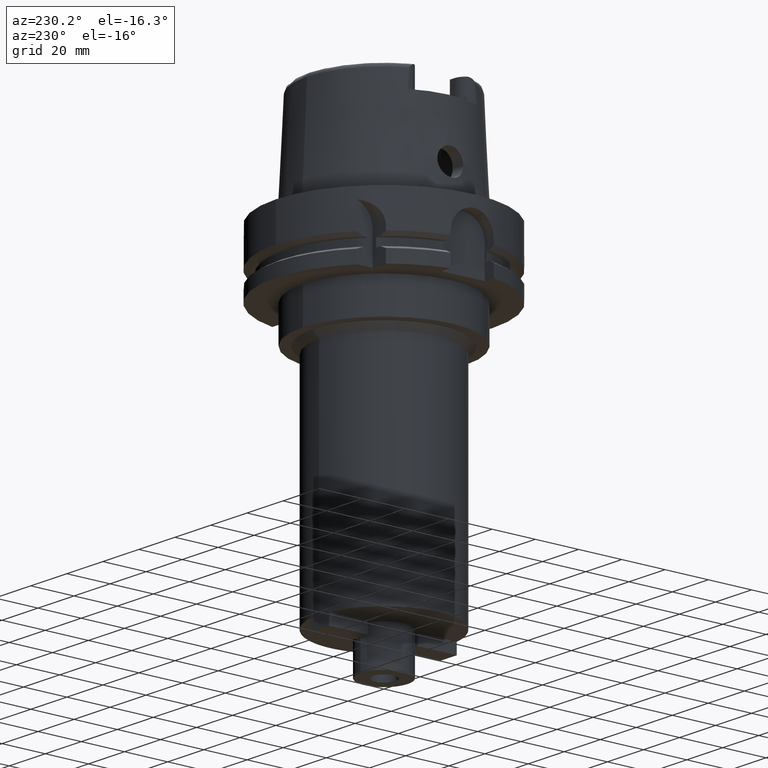
[diagram: clean part render]
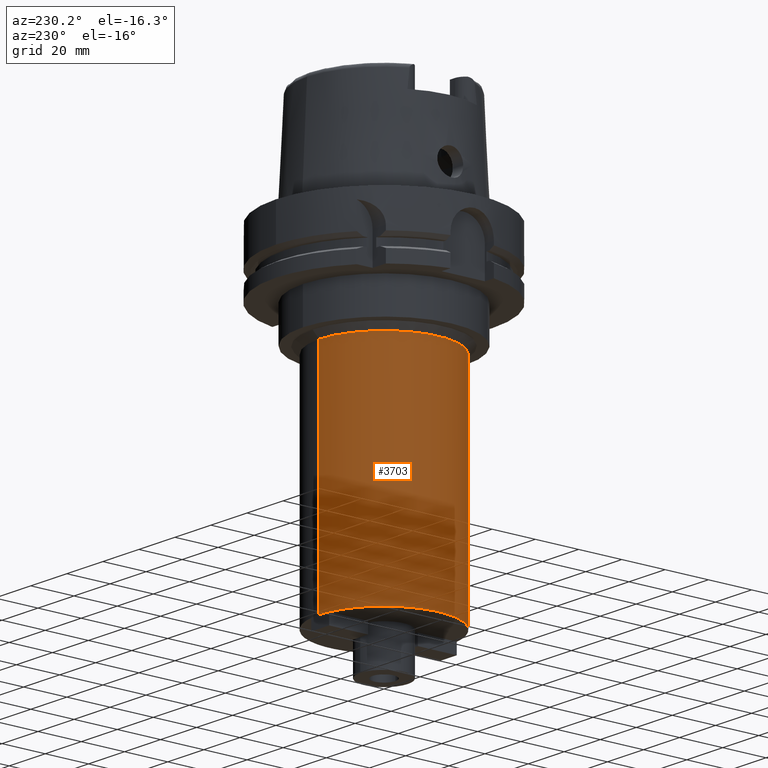
[diagram: same view with one face highlighted and labeled with its STEP entity id]
A machine part, auxiliary view. The second image highlights one B-rep face of the part: STEP entity #3703.
In plain terms, the highlighted cylindrical surface (partial cylindrical patch) has radius 30 mm, axis along (0, 0, 1).
Its self-contained STEP definition (entity closure, byte-faithful):
#1143=CARTESIAN_POINT('',(0.E0,0.E0,-1.5E2));
#1144=DIRECTION('',(0.E0,0.E0,1.E0));
#1145=DIRECTION('',(0.E0,1.E0,0.E0));
#1146=AXIS2_PLACEMENT_3D('',#1143,#1144,#1145);
#1195=DIRECTION('',(0.E0,0.E0,-1.E0));
#1196=VECTOR('',#1195,1.02E2);
#1197=CARTESIAN_POINT('',(0.E0,3.E1,-4.8E1));
#1198=LINE('',#1197,#1196);
#1202=DIRECTION('',(0.E0,0.E0,-1.E0));
#1203=VECTOR('',#1202,1.02E2);
#1204=CARTESIAN_POINT('',(0.E0,-3.E1,-4.8E1));
#1205=LINE('',#1204,#1203);
#1216=CARTESIAN_POINT('',(0.E0,0.E0,-4.8E1));
#1217=DIRECTION('',(0.E0,0.E0,-1.E0));
#1218=DIRECTION('',(0.E0,-1.E0,0.E0));
#1219=AXIS2_PLACEMENT_3D('',#1216,#1217,#1218);
#2617=CARTESIAN_POINT('',(0.E0,-3.E1,-1.5E2));
#2618=CARTESIAN_POINT('',(0.E0,3.E1,-1.5E2));
#2619=VERTEX_POINT('',#2617);
#2620=VERTEX_POINT('',#2618);
#2637=CARTESIAN_POINT('',(0.E0,3.E1,-4.8E1));
#2638=VERTEX_POINT('',#2637);
#2639=CARTESIAN_POINT('',(0.E0,-3.E1,-4.8E1));
#2640=VERTEX_POINT('',#2639);
#3691=CARTESIAN_POINT('',(0.E0,0.E0,-1.789E2));
#3692=DIRECTION('',(0.E0,0.E0,1.E0));
#3693=DIRECTION('',(0.E0,1.E0,0.E0));
#3694=AXIS2_PLACEMENT_3D('',#3691,#3692,#3693);
#3695=CYLINDRICAL_SURFACE('',#3694,3.E1);
#3696=ORIENTED_EDGE('',*,*,#3681,.F.);
#3698=ORIENTED_EDGE('',*,*,#3697,.F.);
#3699=ORIENTED_EDGE('',*,*,#3684,.T.);
#3700=ORIENTED_EDGE('',*,*,#3647,.F.);
#3701=EDGE_LOOP('',(#3696,#3698,#3699,#3700));
#3702=FACE_OUTER_BOUND('',#3701,.F.);
#1147=CIRCLE('',#1146,3.E1);
#1220=CIRCLE('',#1219,3.E1);
#3647=EDGE_CURVE('',#2620,#2619,#1147,.T.);
#3681=EDGE_CURVE('',#2638,#2620,#1198,.T.);
#3684=EDGE_CURVE('',#2640,#2619,#1205,.T.);
#3697=EDGE_CURVE('',#2640,#2638,#1220,.T.);
#3703=ADVANCED_FACE('',(#3702),#3695,.T.);